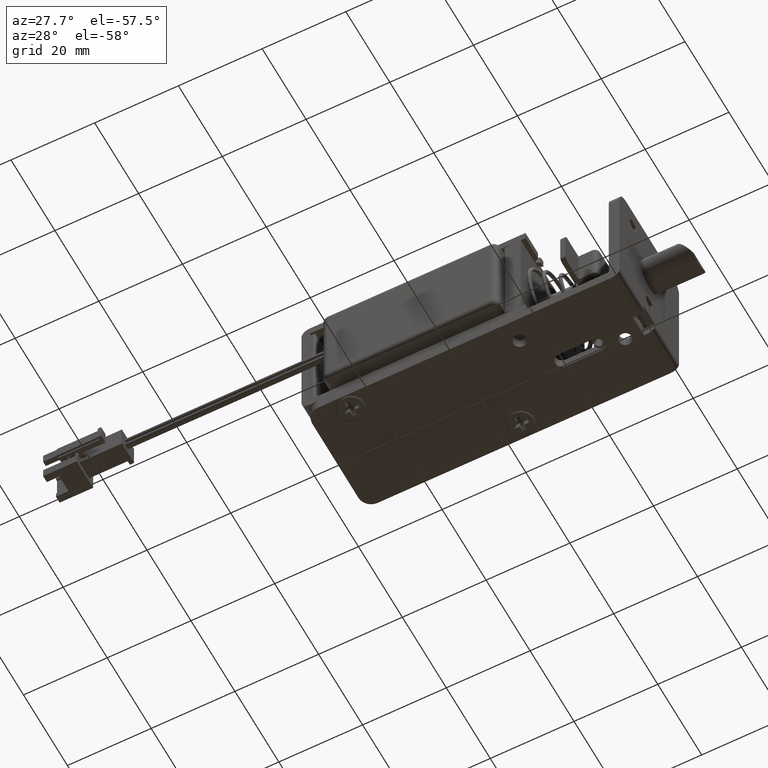
[diagram: clean part render]
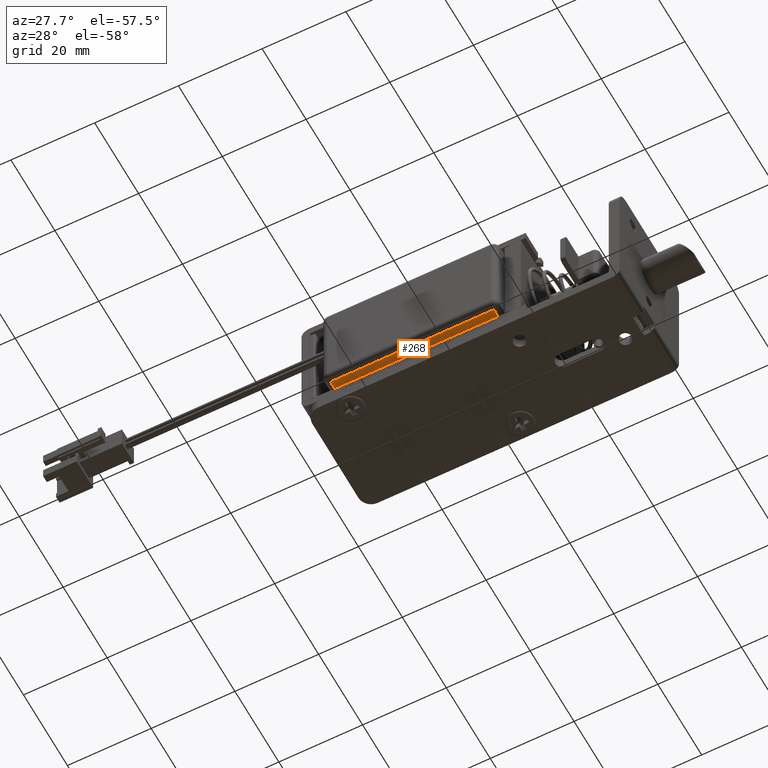
[diagram: same view with one face highlighted and labeled with its STEP entity id]
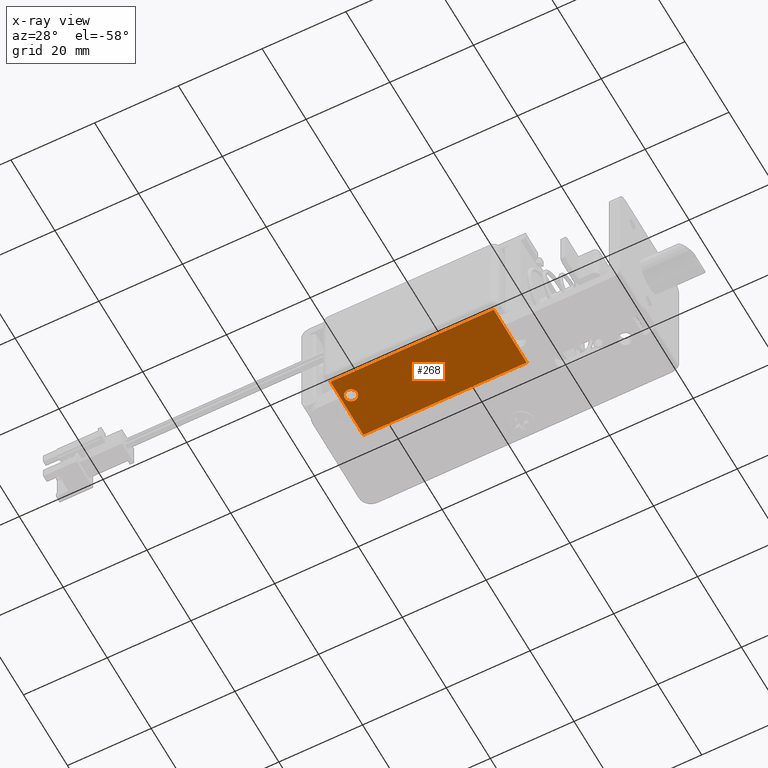
[diagram: x-ray of the same camera — body ghosted, the highlighted face saturated]
A machine part, auxiliary view. The second image highlights one B-rep face of the part: STEP entity #268.
The next image is the same camera in x-ray: the body ghosted, the highlighted face saturated — about 0% of this face is hidden behind the body in this view.
In plain terms, the highlighted planar face has unit normal (0, 0, -1).
Its self-contained STEP definition (entity closure, byte-faithful):
#268=ADVANCED_FACE('',(#1722,#1723),#1721,.T.);
#1721=PLANE('',#5069);
#1722=FACE_OUTER_BOUND('',#5070,.T.);
#1723=FACE_BOUND('',#5071,.T.);
#5066=CARTESIAN_POINT('',(-2.54000000000E+01,-1.65000000000E+01,-1.23000000000E+01));
#5067=DIRECTION('',(2.36665845651E-14,0.00000000000E+00,-1.00000000000E+00));
#5068=DIRECTION('',(-1.00000000000E+00,0.00000000000E+00,-2.36665845651E-14));
#5069=AXIS2_PLACEMENT_3D('',#5066,#5067,#5068);
#5070=EDGE_LOOP('',(#8344,#8345,#8346,#8347));
#5071=EDGE_LOOP('',(#8348,#8349));
#8344=ORIENTED_EDGE('',*,*,#9818,.F.);
#8345=ORIENTED_EDGE('',*,*,#9807,.T.);
#8346=ORIENTED_EDGE('',*,*,#9804,.T.);
#8347=ORIENTED_EDGE('',*,*,#9799,.T.);
#8348=ORIENTED_EDGE('',*,*,#10124,.F.);
#8349=ORIENTED_EDGE('',*,*,#10125,.F.);
#9799=EDGE_CURVE('',#11195,#11230,#11237,.T.);
#9804=EDGE_CURVE('',#11257,#11195,#11270,.T.);
#9807=EDGE_CURVE('',#11289,#11257,#11290,.T.);
#9818=EDGE_CURVE('',#11289,#11230,#11365,.T.);
#10124=EDGE_CURVE('',#13400,#13401,#13402,.T.);
#10125=EDGE_CURVE('',#13401,#13400,#13408,.T.);
#11195=VERTEX_POINT('',#17693);
#11230=VERTEX_POINT('',#17728);
#11237=LINE('',#17741,#17742);
#11257=VERTEX_POINT('',#17754);
#11270=LINE('',#17762,#17763);
#11289=VERTEX_POINT('',#17774);
#11290=LINE('',#17775,#17776);
#11365=LINE('',#17850,#17851);
#13400=VERTEX_POINT('',#19037);
#13401=VERTEX_POINT('',#19038);
#13402=CIRCLE('',#19042,1.50000000000E+00);
#13408=CIRCLE('',#19046,1.50000000000E+00);
#17693=CARTESIAN_POINT('',(-6.83000000000E+01,-1.50000000000E+01,-1.23000000000E+01));
#17728=CARTESIAN_POINT('',(-6.83000000000E+01,0.00000000000E+00,-1.23000000000E+01));
#17741=CARTESIAN_POINT('',(-6.83000000000E+01,-1.50000000000E+01,-1.23000000000E+01));
#17742=VECTOR('',#17743,1.50000000000E+01);
#17743=DIRECTION('',(0.00000000000E+00,1.00000000000E+00,0.00000000000E+00));
#17754=CARTESIAN_POINT('',(-2.93000000000E+01,-1.50000000000E+01,-1.23000000000E+01));
#17762=CARTESIAN_POINT('',(-2.93000000000E+01,-1.50000000000E+01,-1.23000000000E+01));
#17763=VECTOR('',#17764,3.90000000000E+01);
#17764=DIRECTION('',(-1.00000000000E+00,0.00000000000E+00,-2.36847578587E-14));
#17774=CARTESIAN_POINT('',(-2.93000000000E+01,0.00000000000E+00,-1.23000000000E+01));
#17775=CARTESIAN_POINT('',(-2.93000000000E+01,0.00000000000E+00,-1.23000000000E+01));
#17776=VECTOR('',#17777,1.50000000000E+01);
#17777=DIRECTION('',(0.00000000000E+00,-1.00000000000E+00,0.00000000000E+00));
#17850=CARTESIAN_POINT('',(-2.93000000000E+01,0.00000000000E+00,-1.23000000000E+01));
#17851=VECTOR('',#17852,3.90000000000E+01);
#17852=DIRECTION('',(-1.00000000000E+00,0.00000000000E+00,-2.36847578587E-14));
#19037=CARTESIAN_POINT('',(-6.45000000000E+01,-1.00000000000E+01,-1.23000000000E+01));
#19038=CARTESIAN_POINT('',(-6.75000000000E+01,-1.00000000000E+01,-1.23000000000E+01));
#19039=CARTESIAN_POINT('',(-6.60000000000E+01,-1.00000000000E+01,-1.23000000000E+01));
#19040=DIRECTION('',(2.36665845651E-14,-3.50324616081E-46,-1.00000000000E+00));
#19041=DIRECTION('',(-1.00000000000E+00,-1.22460635382E-16,-2.36665845651E-14));
#19042=AXIS2_PLACEMENT_3D('',#19039,#19040,#19041);
#19043=CARTESIAN_POINT('',(-6.60000000000E+01,-1.00000000000E+01,-1.23000000000E+01));
#19044=DIRECTION('',(2.36665845651E-14,-3.50324616081E-46,-1.00000000000E+00));
#19045=DIRECTION('',(-1.00000000000E+00,-1.22460635382E-16,-2.36665845651E-14));
#19046=AXIS2_PLACEMENT_3D('',#19043,#19044,#19045);